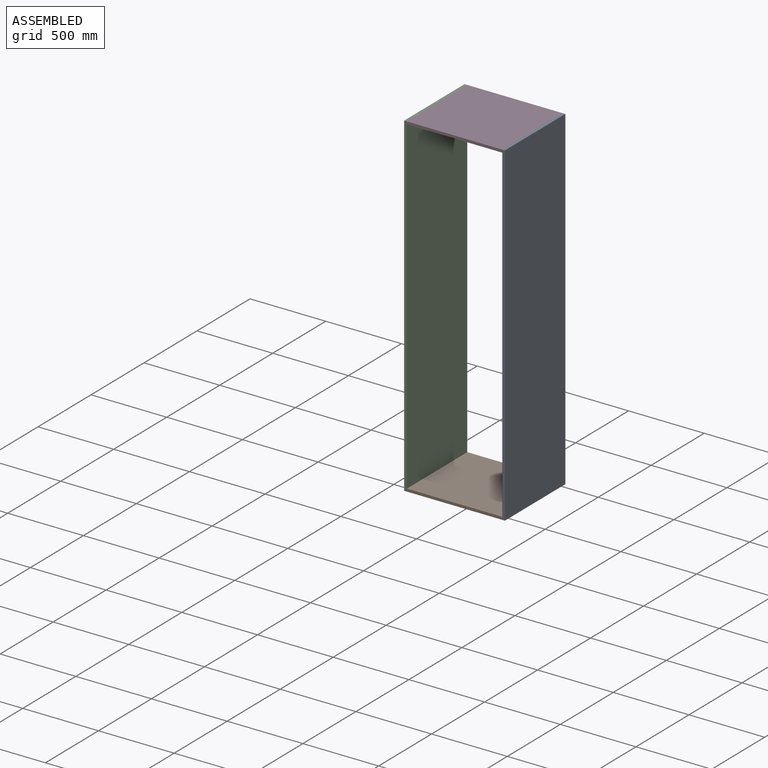
[diagram: assembled view]
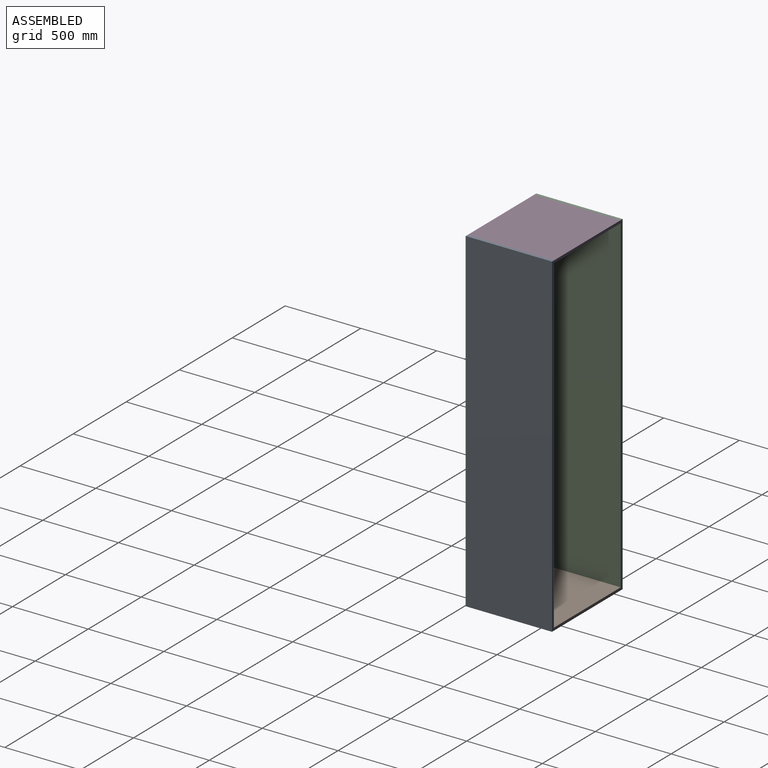
[diagram: assembled view, second angle]
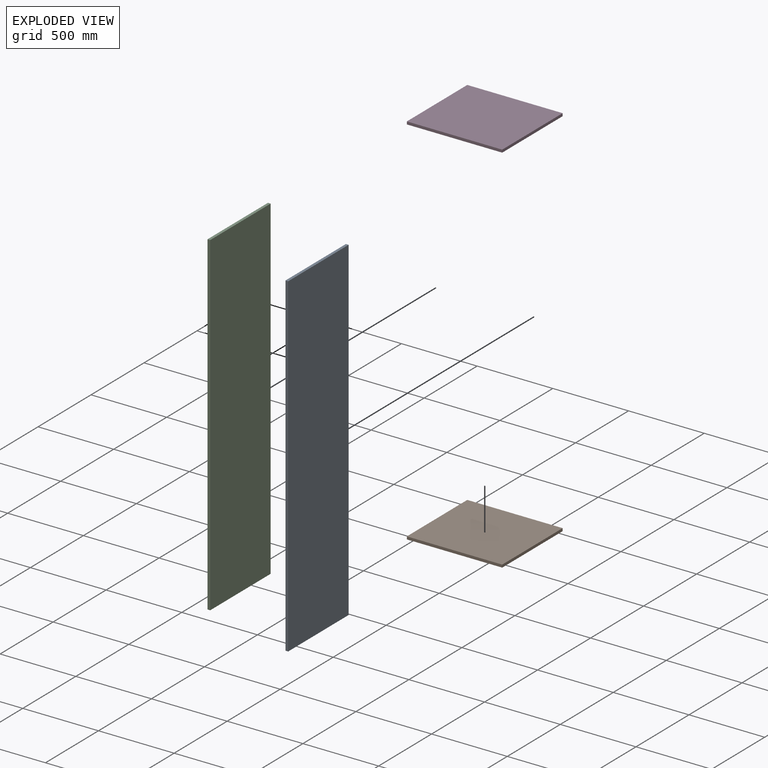
[diagram: exploded view]
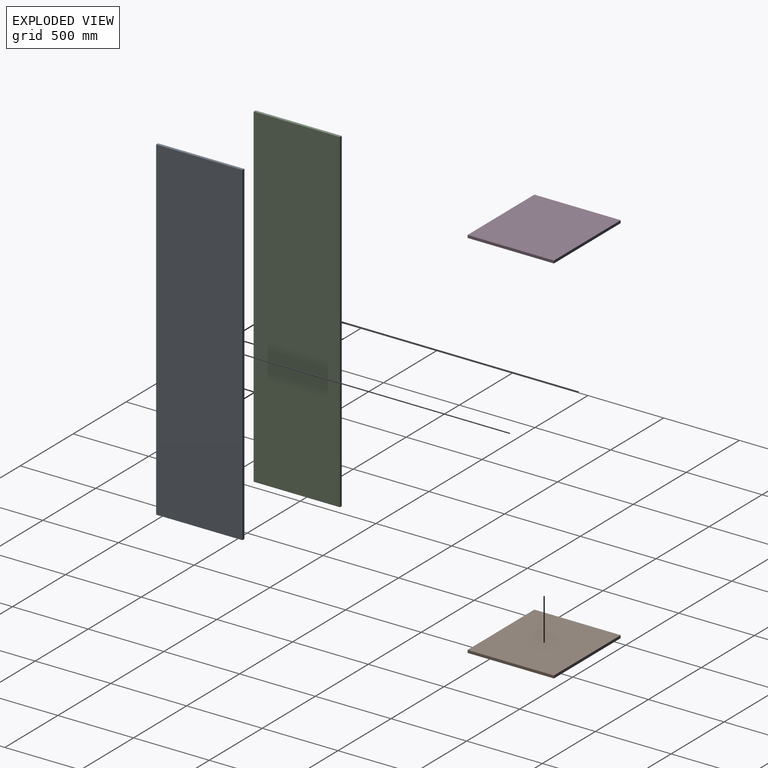
[diagram: exploded view, second angle]
ASSEMBLY  parts=4 mates=9
PART A: 6 faces, bbox 18x570x2210 mm
  f0: plane 2210x18mm, normal (0,-1,0), area 39780mm2, adj f1,f3,f4,f5
  f1: plane 570x18mm, normal (0,0,-1), area 10260mm2, adj f0,f2,f4,f5
  f2: plane 2210x18mm, normal (0,1,0), area 39780mm2, adj f1,f3,f4,f5
  f3: plane 570x18mm, normal (0,0,1), area 10260mm2, adj f0,f2,f4,f5
  f4: plane 2210x570mm, normal (1,0,0), area 1259700mm2, adj f0,f1,f2,f3
  f5: plane 2210x570mm, normal (-1,0,0), area 1259700mm2, adj f0,f1,f2,f3
PART B: 6 faces, bbox 630x570x18 mm
  f0: plane 630x18mm, normal (0,1,0), area 11340mm2, adj f1,f3,f4,f5
  f1: plane 570x18mm, normal (-1,0,0), area 10260mm2, adj f0,f2,f4,f5
  f2: plane 630x18mm, normal (0,-1,0), area 11340mm2, adj f1,f3,f4,f5
  f3: plane 570x18mm, normal (1,0,0), area 10260mm2, adj f0,f2,f4,f5
  f4: plane 630x570mm, normal (0,0,1), area 359100mm2, adj f0,f1,f2,f3
  f5: plane 630x570mm, normal (0,0,-1), area 359100mm2, adj f0,f1,f2,f3
PART C: same geometry as A
PART D: same geometry as B
PLACE A t=(-364.36,-308.31,99.99)mm
PLACE B t=(-2612.34,262.37,-702.6)mm
PLACE C t=(-1012.36,-308.31,99.99)mm
PLACE D t=(-2612.34,262.37,1489.4)mm
MATE planar D.f4 <-> C.f3  axis (0,0,1) through (-679.36,-314,1507.4)mm
MATE planar B.f1 <-> C.f4  axis (-1,0,0) through (-994.36,-314,-693.6)mm
MATE planar C.f0 <-> D.f2  axis (0,-1,0) through (-1003.36,-599,402.4)mm
MATE planar A.f0 <-> D.f2  axis (0,-1,0) through (-355.36,-599,402.4)mm
MATE planar D.f1 <-> C.f4  axis (-1,0,0) through (-994.36,-314,1498.4)mm
MATE planar B.f5 <-> C.f1  axis (0,0,-1) through (-679.36,-314,-702.6)mm
MATE planar A.f3 <-> D.f4  axis (0,0,1) through (-355.36,-314,1507.4)mm
MATE planar A.f5 <-> D.f3  axis (-1,0,0) through (-364.36,-314,402.4)mm
MATE planar B.f2 <-> C.f0  axis (0,-1,0) through (-679.36,-599,-693.6)mm
